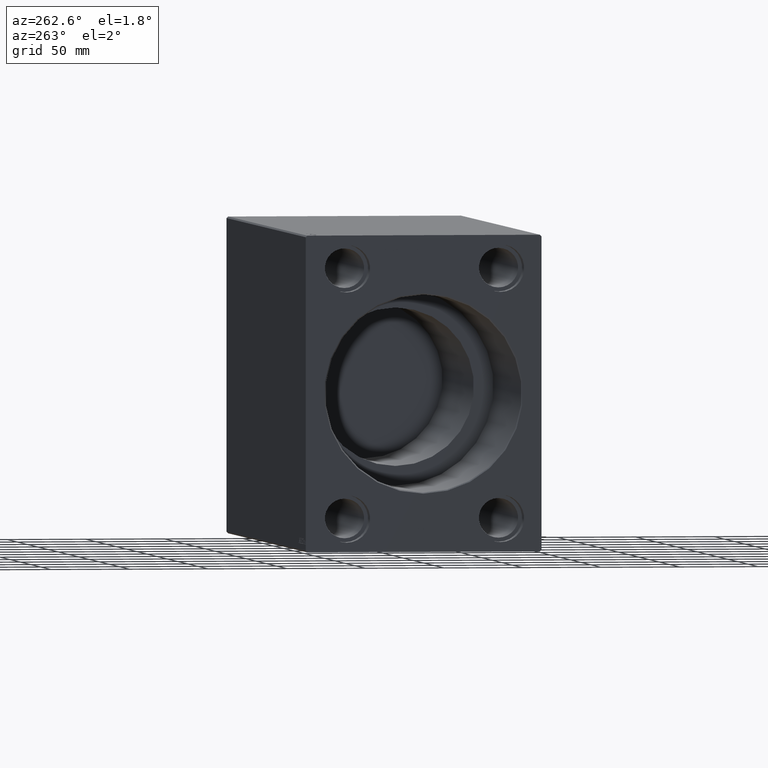
[diagram: clean part render]
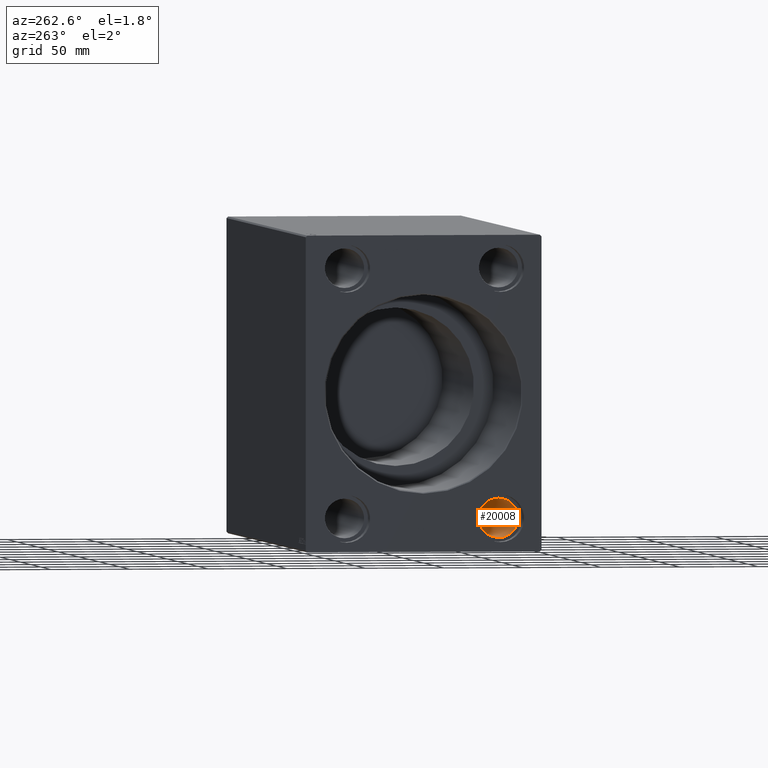
[diagram: same view with one face highlighted and labeled with its STEP entity id]
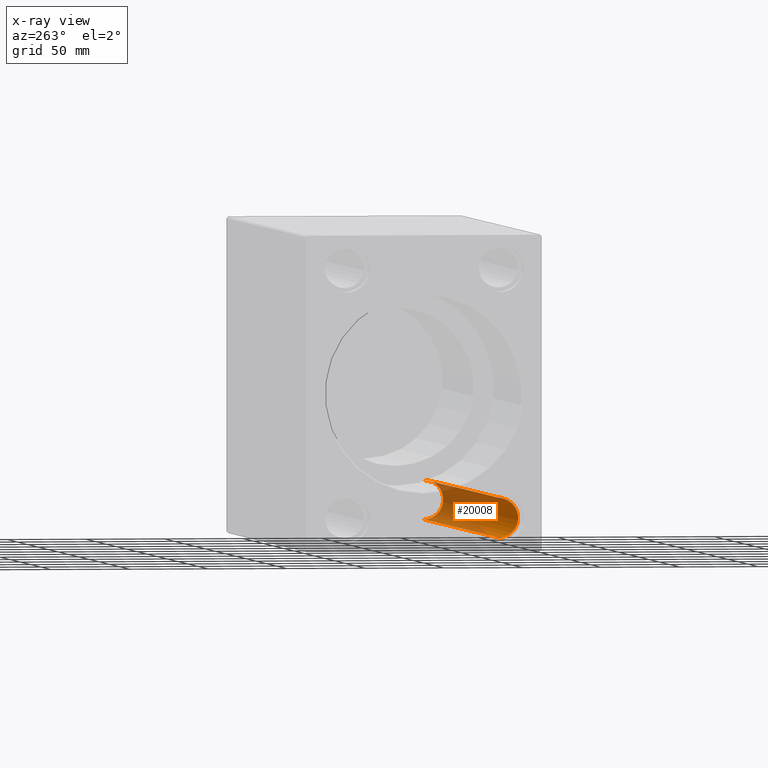
[diagram: x-ray of the same camera — body ghosted, the highlighted face saturated]
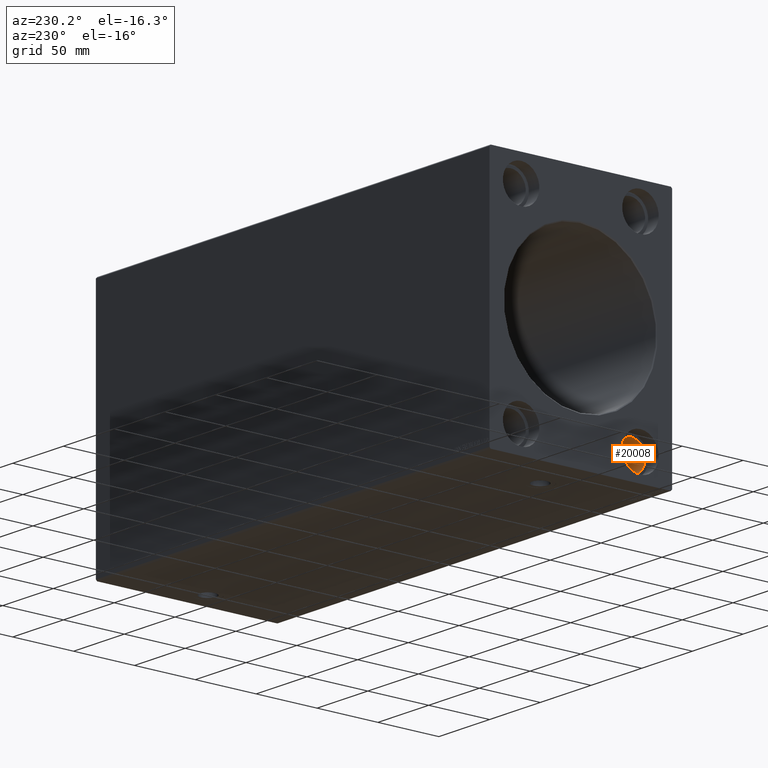
[diagram: same view with one face highlighted and labeled with its STEP entity id]
A machine part, auxiliary view. The second image highlights one B-rep face of the part: STEP entity #20008.
The next image is the same camera in x-ray: the body ghosted, the highlighted face saturated — about 60% of this face is hidden behind the body in this view.
A second angle (auxiliary view) of the same face is appended — the face is thin or edge-on in the first view.
In plain terms, the highlighted cylindrical surface (edge-blend (fillet) strip) has radius 12.5 mm, axis along (-1, -0, -0).
Its self-contained STEP definition (entity closure, byte-faithful):
#660 = EDGE_CURVE ( 'NONE', #20556, #3660, #6922, .T. ) ;
#664 = ORIENTED_EDGE ( 'NONE', *, *, #660, .F. ) ;
#1328 = ORIENTED_EDGE ( 'NONE', *, *, #38130, .F. ) ;
#1858 = DIRECTION ( 'NONE',  ( 0.000000000000000000, 0.000000000000000000, 1.000000000000000000 ) ) ;
#1880 = AXIS2_PLACEMENT_3D ( 'NONE', #20631, #36906, #26425 ) ;
#2307 = AXIS2_PLACEMENT_3D ( 'NONE', #17696, #40391, #1858 ) ;
#2522 = FACE_OUTER_BOUND ( 'NONE', #13282, .T. ) ;
#2941 = CARTESIAN_POINT ( 'NONE',  ( 388.0000000000000000, -48.99999999999999289, -79.00000000000001421 ) ) ;
#3408 = DIRECTION ( 'NONE',  ( -1.000000000000000000, -0.000000000000000000, -0.000000000000000000 ) ) ;
#3660 = VERTEX_POINT ( 'NONE', #20362 ) ;
#4730 = EDGE_CURVE ( 'NONE', #33968, #38101, #32951, .T. ) ;
#5121 = VECTOR ( 'NONE', #3408, 1000.000000000000000 ) ;
#6922 = LINE ( 'NONE', #33036, #34564 ) ;
#9373 = DIRECTION ( 'NONE',  ( -1.000000000000000000, -0.000000000000000000, -0.000000000000000000 ) ) ;
#9809 = ORIENTED_EDGE ( 'NONE', *, *, #4730, .T. ) ;
#11498 = EDGE_CURVE ( 'NONE', #3660, #38101, #23737, .T. ) ;
#13282 = EDGE_LOOP ( 'NONE', ( #1328, #9809, #37663, #664 ) ) ;
#16750 = DIRECTION ( 'NONE',  ( -1.000000000000000000, -0.000000000000000000, -0.000000000000000000 ) ) ;
#17696 = CARTESIAN_POINT ( 'NONE',  ( 377.6700000000000159, -48.99999999999999289, -79.00000000000001421 ) ) ;
#18110 = CARTESIAN_POINT ( 'NONE',  ( 10.33000000000000540, -48.99999999999999289, -91.50000000000002842 ) ) ;
#20008 = ADVANCED_FACE ( 'NONE', ( #2522 ), #28444, .F. ) ;
#20362 = CARTESIAN_POINT ( 'NONE',  ( 10.33000000000000540, -48.99999999999999289, -66.50000000000000000 ) ) ;
#20556 = VERTEX_POINT ( 'NONE', #23551 ) ;
#20631 = CARTESIAN_POINT ( 'NONE',  ( 10.33000000000000540, -48.99999999999999289, -79.00000000000001421 ) ) ;
#21445 = CIRCLE ( 'NONE', #2307, 12.50000000000001066 ) ;
#22388 = CARTESIAN_POINT ( 'NONE',  ( 377.6700000000000159, -48.99999999999999289, -91.50000000000002842 ) ) ;
#23094 = CARTESIAN_POINT ( 'NONE',  ( 388.0000000000000000, -48.99999999999999289, -91.50000000000002842 ) ) ;
#23551 = CARTESIAN_POINT ( 'NONE',  ( 377.6700000000000159, -48.99999999999999289, -66.50000000000000000 ) ) ;
#23737 = CIRCLE ( 'NONE', #1880, 12.50000000000001066 ) ;
#26425 = DIRECTION ( 'NONE',  ( 0.000000000000000000, 0.000000000000000000, -1.000000000000000000 ) ) ;
#28444 = CYLINDRICAL_SURFACE ( 'NONE', #41589, 12.50000000000001066 ) ;
#32951 = LINE ( 'NONE', #23094, #5121 ) ;
#33036 = CARTESIAN_POINT ( 'NONE',  ( 388.0000000000000000, -48.99999999999999289, -66.50000000000000000 ) ) ;
#33968 = VERTEX_POINT ( 'NONE', #22388 ) ;
#34564 = VECTOR ( 'NONE', #16750, 1000.000000000000000 ) ;
#36906 = DIRECTION ( 'NONE',  ( 1.000000000000000000, -0.000000000000000000, -0.000000000000000000 ) ) ;
#37663 = ORIENTED_EDGE ( 'NONE', *, *, #11498, .F. ) ;
#38101 = VERTEX_POINT ( 'NONE', #18110 ) ;
#38130 = EDGE_CURVE ( 'NONE', #33968, #20556, #21445, .T. ) ;
#40391 = DIRECTION ( 'NONE',  ( -1.000000000000000000, 0.000000000000000000, 0.000000000000000000 ) ) ;
#41477 = DIRECTION ( 'NONE',  ( 0.000000000000000000, 0.000000000000000000, 1.000000000000000000 ) ) ;
#41589 = AXIS2_PLACEMENT_3D ( 'NONE', #2941, #9373, #41477 ) ;